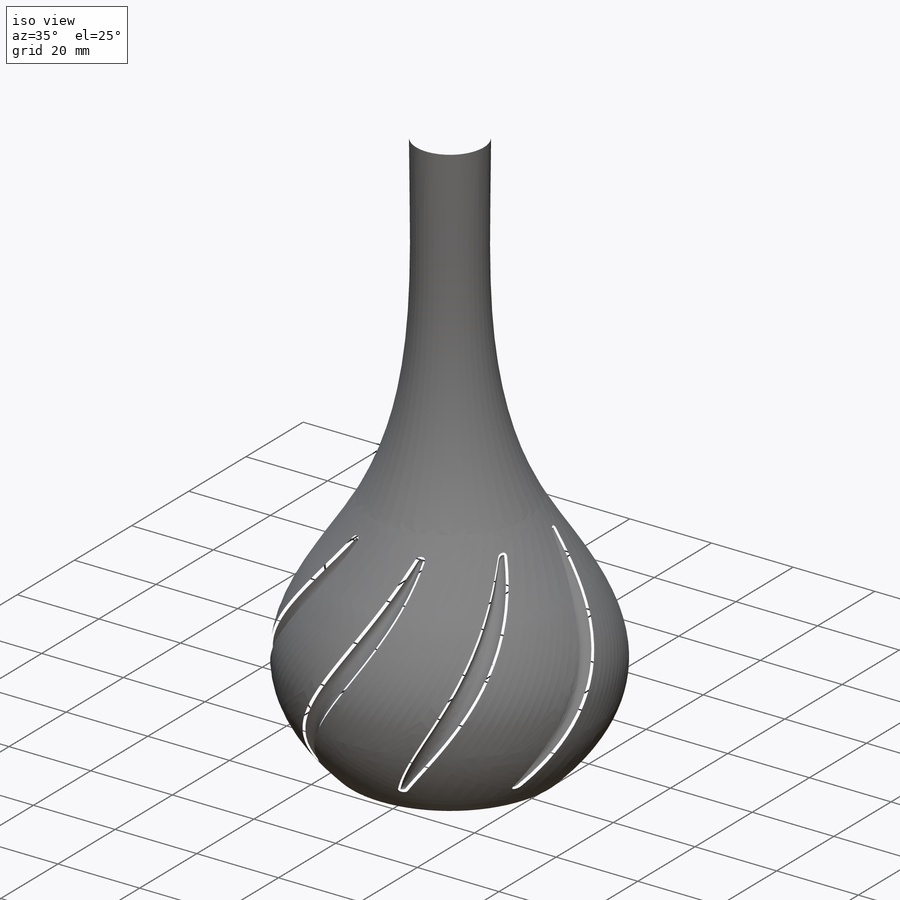
[diagram: iso view]
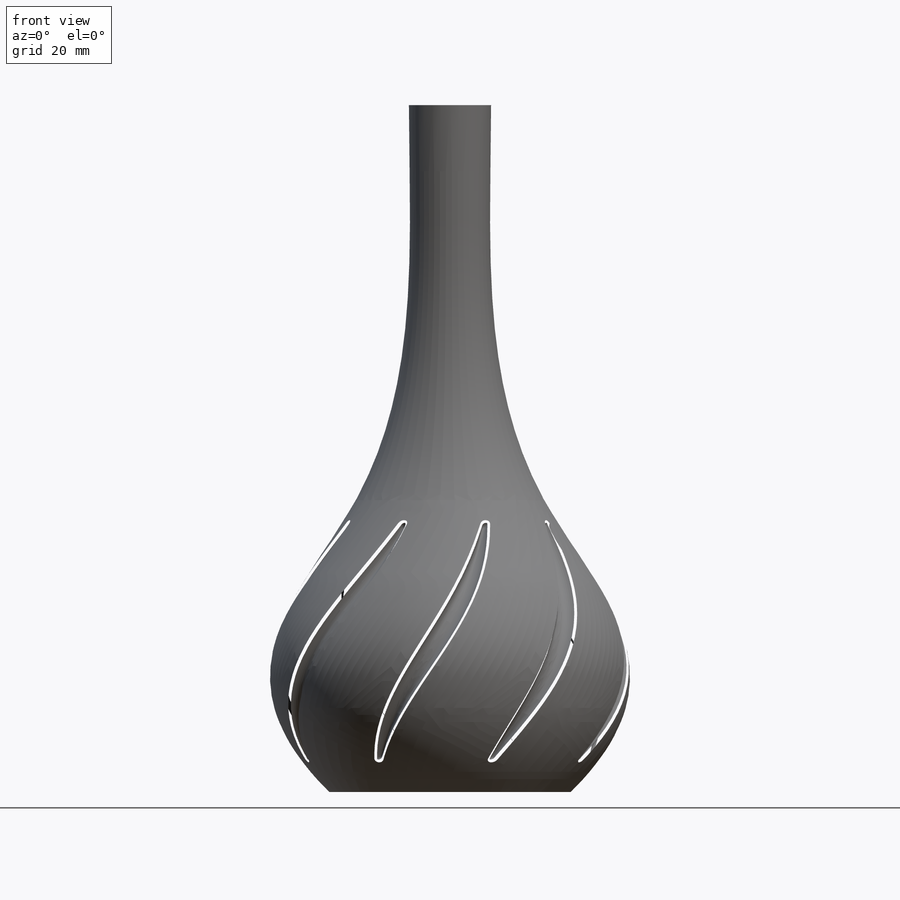
[diagram: front view]
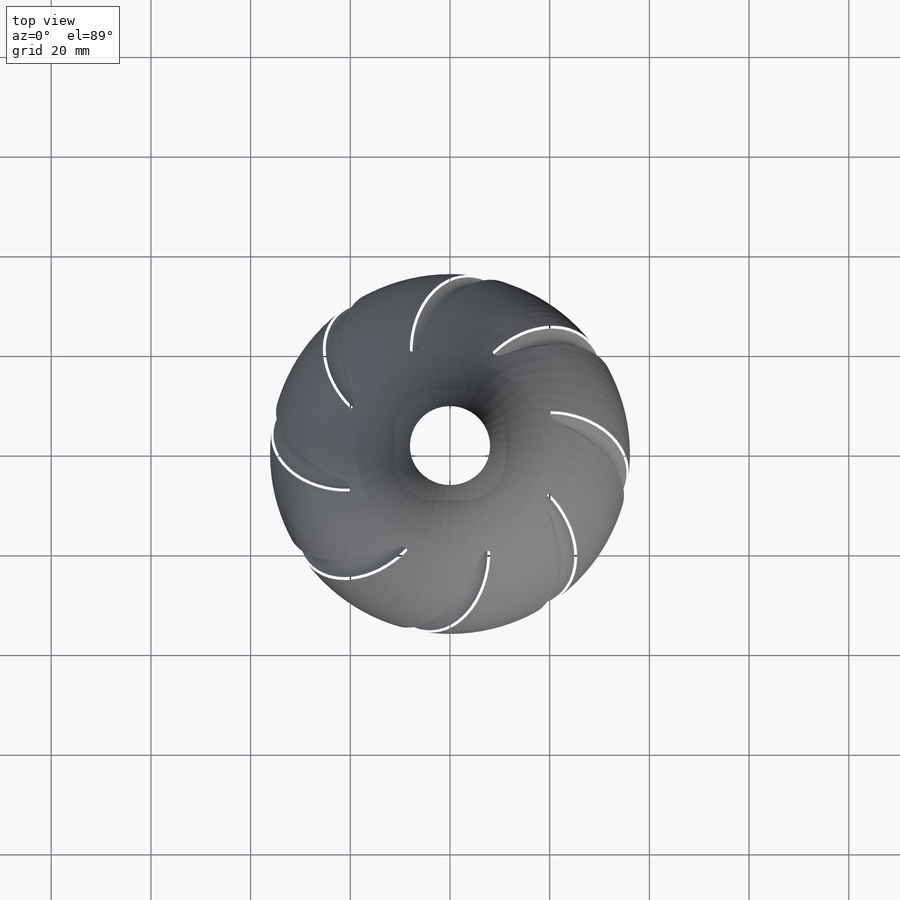
[diagram: top view]
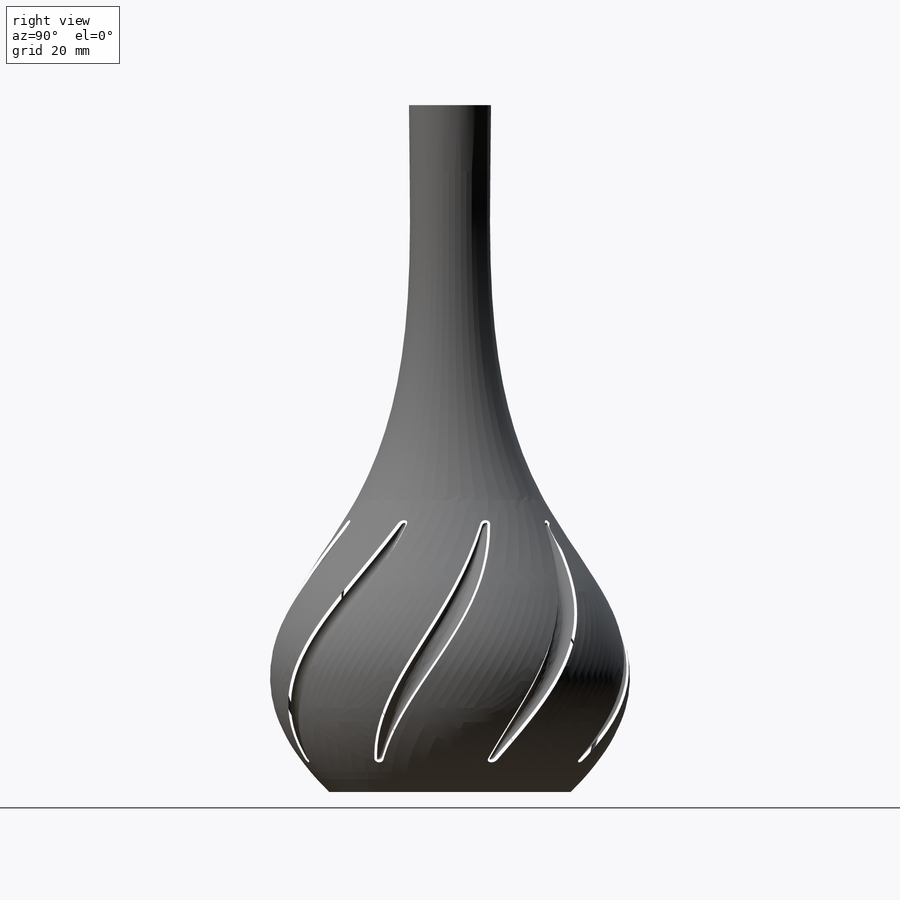
[diagram: right view]
SOLIDWORKS PART (.sldprt)
format: sldprt  version: not decoded by parser v0  size: 2,797,568 bytes
history: native  units: mm
features: fillet x6, sketch x3, material x1, revolve x1, cut_extrude x1, pattern_circular x1, dome x1, shell x1 (+13 scaffold rows collapsed)
feature tree (28):
  scaffold x13  (default folders/planes/origin — collapsed)
  material  "Material <not specified>"
  sketch  "Sketch1"
  revolve  "Revolve1"  Angle=360deg
  sketch  "Sketch2"
  cut_extrude  "Cut-Extrude1"  Depth=2mm
  fillet  "Fillet1"  Radius=2mm
  fillet  "Fillet2"  Radius=0.5mm
  pattern_circular  "CirPattern1"  Count=8 Angle=45deg
  sketch  "Sketch3"  dims[D1=5.0mm]
  dome  "Dome1"
  fillet  "Fillet4"  Radius=2mm
  fillet  "Fillet5"  Radius=1mm
  fillet  "Fillet6"  Radius=0.5mm
  shell  "Shell1"  Thickness=1.5mm
  fillet  "Fillet7"  Radius=0.75mm
decode coverage: 11 of 14 modeling features carry decoded parameters
note: suppression state not decoded; provenance and decode notes live in map.json
